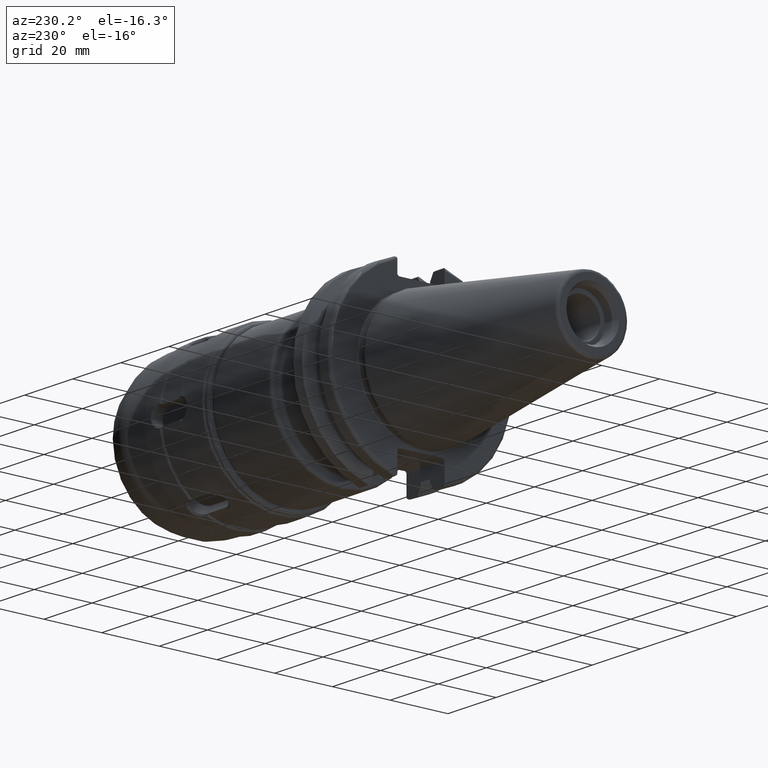
[diagram: clean part render]
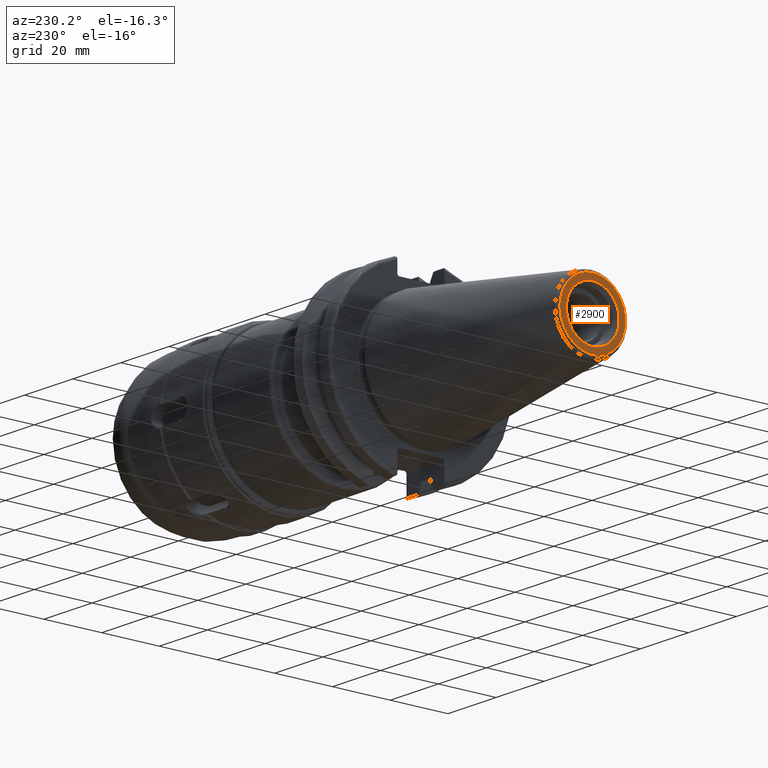
[diagram: same view with one face highlighted and labeled with its STEP entity id]
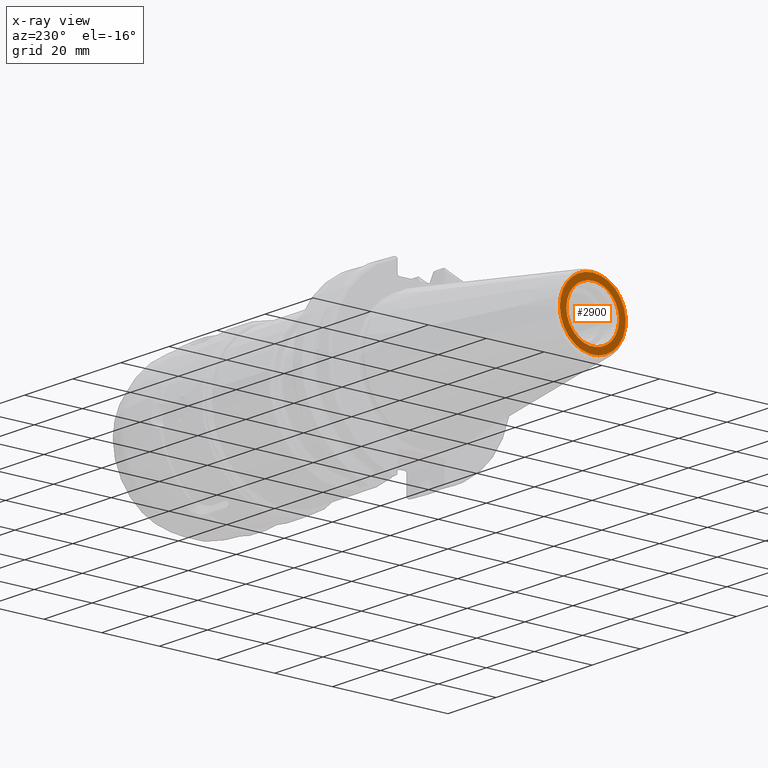
[diagram: x-ray of the same camera — body ghosted, the highlighted face saturated]
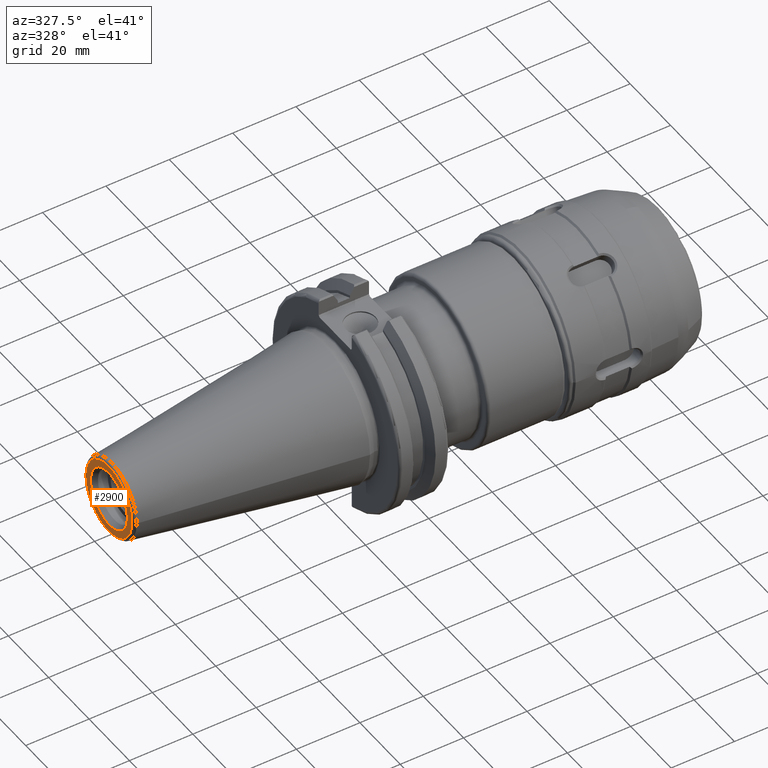
[diagram: same view with one face highlighted and labeled with its STEP entity id]
A machine part, auxiliary view. The second image highlights one B-rep face of the part: STEP entity #2900.
The next image is the same camera in x-ray: the body ghosted, the highlighted face saturated — about 0% of this face is hidden behind the body in this view.
A second angle (auxiliary view) of the same face is appended — the face is thin or edge-on in the first view.
In plain terms, the highlighted planar face has unit normal (-1, 0, 0).
Its self-contained STEP definition (entity closure, byte-faithful):
#229=FACE_BOUND('',#505,.T.);
#255=PLANE('',#3202);
#337=FACE_OUTER_BOUND('',#504,.T.);
#504=EDGE_LOOP('',(#2154,#2155));
#505=EDGE_LOOP('',(#2156,#2157));
#999=CIRCLE('',#3199,11.4071305970304);
#1000=CIRCLE('',#3200,11.4071305970304);
#1002=CIRCLE('',#3203,9.15);
#1003=CIRCLE('',#3204,9.15);
#1240=VERTEX_POINT('',#4714);
#1241=VERTEX_POINT('',#4716);
#1242=VERTEX_POINT('',#4721);
#1243=VERTEX_POINT('',#4722);
#1595=EDGE_CURVE('',#1240,#1241,#999,.T.);
#1596=EDGE_CURVE('',#1241,#1240,#1000,.T.);
#1598=EDGE_CURVE('',#1242,#1243,#1002,.T.);
#1599=EDGE_CURVE('',#1243,#1242,#1003,.T.);
#2154=ORIENTED_EDGE('',*,*,#1596,.F.);
#2155=ORIENTED_EDGE('',*,*,#1595,.F.);
#2156=ORIENTED_EDGE('',*,*,#1598,.T.);
#2157=ORIENTED_EDGE('',*,*,#1599,.T.);
#2900=ADVANCED_FACE('',(#337,#229),#255,.T.);
#3199=AXIS2_PLACEMENT_3D('',#4717,#3706,#3707);
#3200=AXIS2_PLACEMENT_3D('',#4718,#3708,#3709);
#3202=AXIS2_PLACEMENT_3D('',#4720,#3712,#3713);
#3203=AXIS2_PLACEMENT_3D('',#4723,#3714,#3715);
#3204=AXIS2_PLACEMENT_3D('',#4724,#3716,#3717);
#3706=DIRECTION('center_axis',(1.,0.,0.));
#3707=DIRECTION('ref_axis',(0.,-1.,1.83697019872103E-16));
#3708=DIRECTION('center_axis',(1.,0.,0.));
#3709=DIRECTION('ref_axis',(0.,-1.,1.83697019872103E-16));
#3712=DIRECTION('center_axis',(-1.,0.,0.));
#3713=DIRECTION('ref_axis',(0.,0.,1.));
#3714=DIRECTION('center_axis',(1.,0.,0.));
#3715=DIRECTION('ref_axis',(0.,0.,-1.));
#3716=DIRECTION('center_axis',(1.,0.,0.));
#3717=DIRECTION('ref_axis',(0.,0.,-1.));
#4714=CARTESIAN_POINT('',(-68.25,-1.39697059731091E-15,11.4071305970304));
#4716=CARTESIAN_POINT('',(-68.25,11.4071305970304,-6.98485298655456E-16));
#4717=CARTESIAN_POINT('Origin',(-68.25,0.,0.));
#4718=CARTESIAN_POINT('Origin',(-68.25,0.,0.));
#4720=CARTESIAN_POINT('Origin',(-68.25,12.271875,0.));
#4721=CARTESIAN_POINT('',(-68.25,9.15,0.));
#4722=CARTESIAN_POINT('',(-68.25,-9.15,-1.12055182121983E-15));
#4723=CARTESIAN_POINT('Origin',(-68.25,0.,0.));
#4724=CARTESIAN_POINT('Origin',(-68.25,0.,0.));